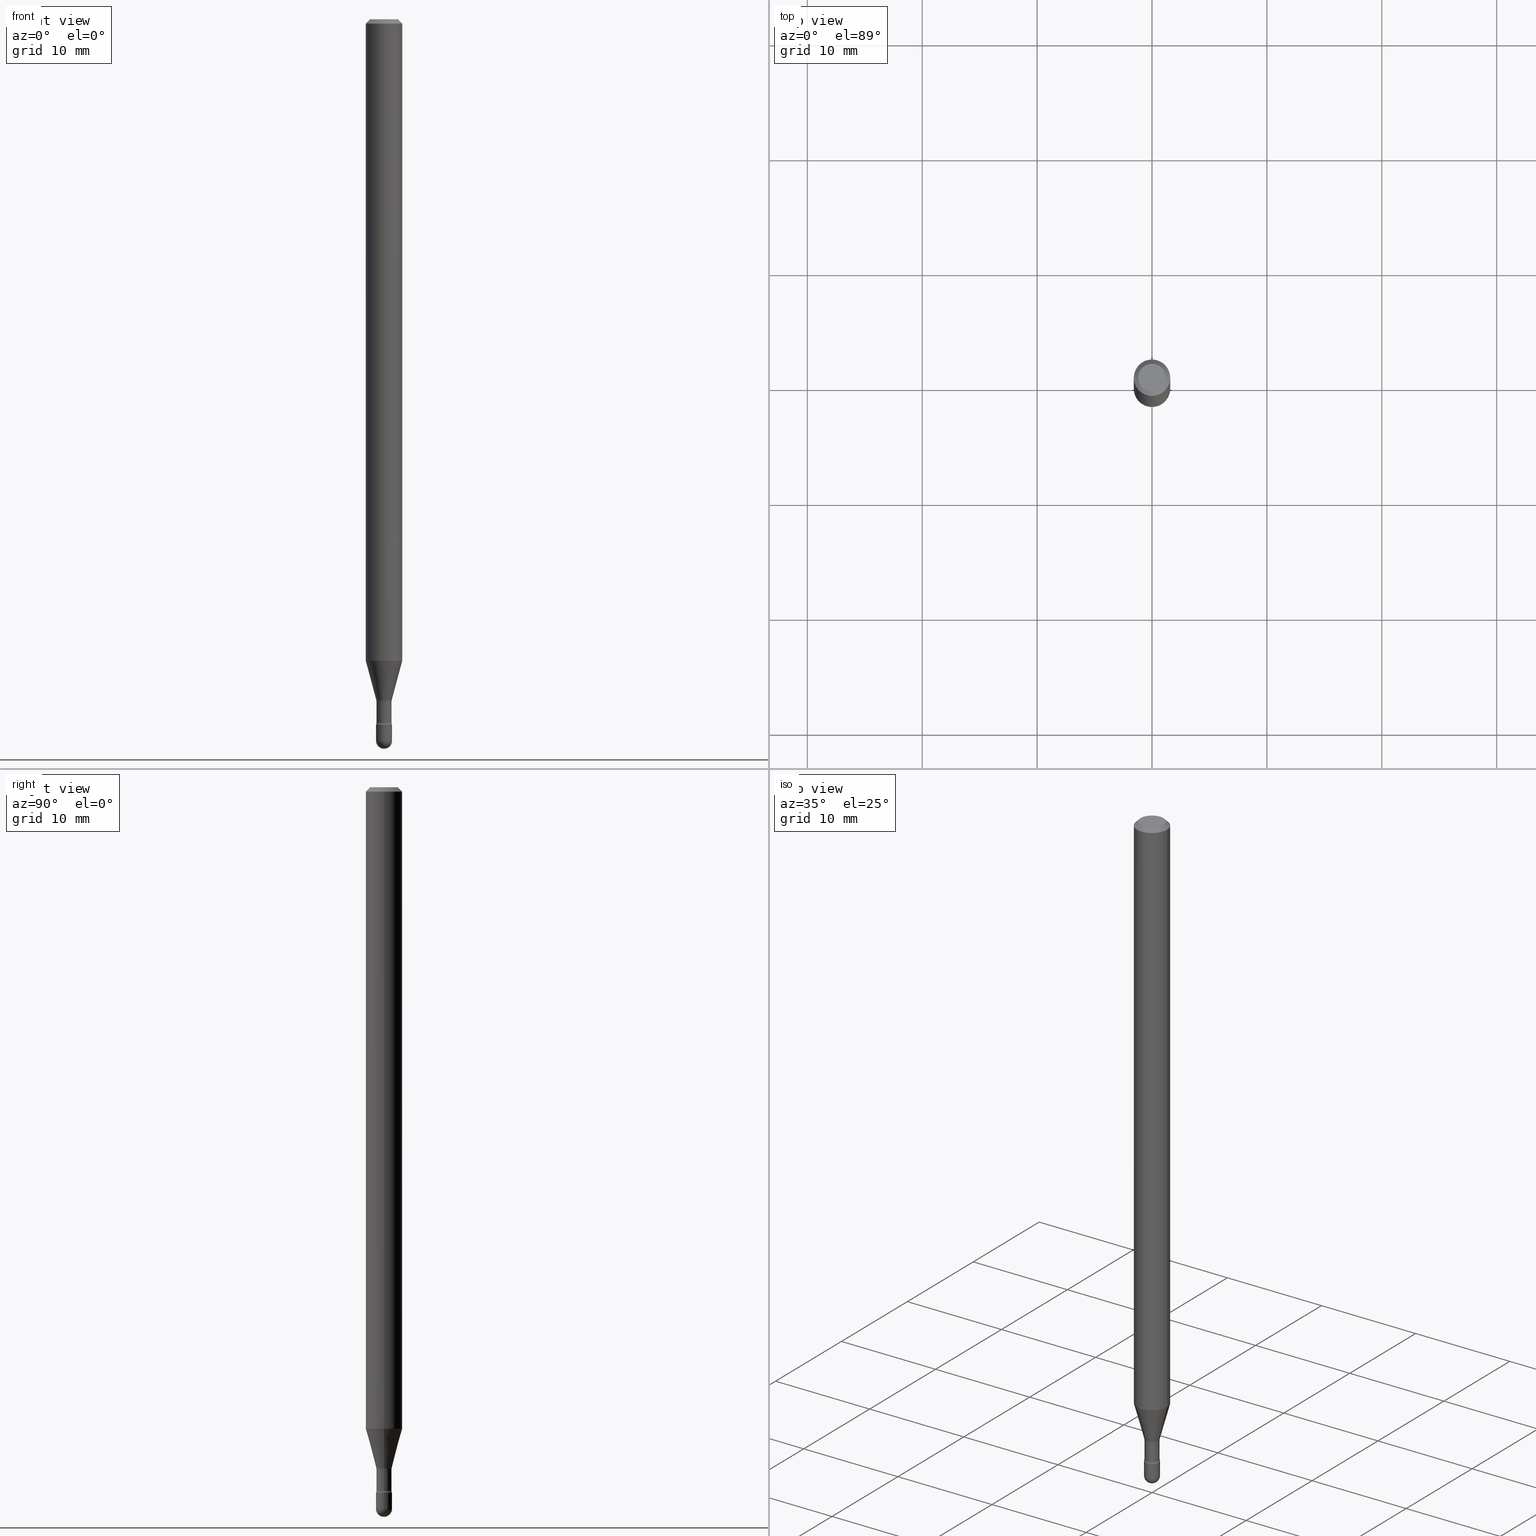
[diagram: canonical four-view strip — front | top / right | iso, engineering-drawing reading convention]
A machine part, canonical four-view strip (front | top / right | iso — engineering-drawing reading convention). The complete STEP part file that produces these views, byte-faithful:
ISO-10303-21;
HEADER;
FILE_DESCRIPTION (( 'STEP AP203' ),
    '1' );
FILE_NAME ('09487.STEP',
    '2024-04-09T23:45:29',
    ( '' ),
    ( '' ),
    'SwSTEP 2.0',
    'SolidWorks 2023',
    '' );
FILE_SCHEMA (( 'CONFIG_CONTROL_DESIGN' ));
ENDSEC;

DATA;
#1 = AXIS2_PLACEMENT_3D ( 'NONE', #174, #534, #110 ) ;
#2 = AXIS2_PLACEMENT_3D ( 'NONE', #153, #528, #62 ) ;
#3 = ORIENTED_EDGE ( 'NONE', *, *, #305, .F. ) ;
#4 = DIRECTION ( 'NONE',  ( 2.445468806185136597E-29, -3.491481338843145583E-15, -1.000000000000000000 ) ) ;
#5 = ORIENTED_EDGE ( 'NONE', *, *, #194, .T. ) ;
#6 = DIRECTION ( 'NONE',  ( 6.982962677686265922E-15, 1.000000000000000000, 0.000000000000000000 ) ) ;
#7 = CC_DESIGN_PERSON_AND_ORGANIZATION_ASSIGNMENT ( #24, #501, ( #342 ) ) ;
#8 = ORIENTED_EDGE ( 'NONE', *, *, #364, .F. ) ;
#9 = CIRCLE ( 'NONE', #104, 0.01500000000000001853 ) ;
#10 = AXIS2_PLACEMENT_3D ( 'NONE', #27, #288, #164 ) ;
#11 = DIMENSIONAL_EXPONENTS ( 1.000000000000000000, 0.000000000000000000, 0.000000000000000000, 0.000000000000000000, 0.000000000000000000, 0.000000000000000000, 0.000000000000000000 ) ;
#12 = DIRECTION ( 'NONE',  ( 1.000000000000000000, -6.982962677686279332E-15, 0.000000000000000000 ) ) ;
#13 = EDGE_CURVE ( 'NONE', #161, #68, #134, .T. ) ;
#14 = ORIENTED_EDGE ( 'NONE', *, *, #256, .T. ) ;
#15 = PLANE ( 'NONE',  #302 ) ;
#16 = PRODUCT_RELATED_PRODUCT_CATEGORY ( 'detail', '', ( #342 ) ) ;
#17 = CARTESIAN_POINT ( 'NONE',  ( 0.02750000000000000014, -1.920314736363723444E-16, 1.340948613343882413E-30 ) ) ;
#18 = CARTESIAN_POINT ( 'NONE',  ( 6.046421623292749742E-29, -8.632687610289676724E-15, -2.472500000000000142 ) ) ;
#19 = FACE_OUTER_BOUND ( 'NONE', #234, .T. ) ;
#20 = AXIS2_PLACEMENT_3D ( 'NONE', #162, #285, #451 ) ;
#21 = ORIENTED_EDGE ( 'NONE', *, *, #305, .T. ) ;
#22 = CARTESIAN_POINT ( 'NONE',  ( 0.04085000000000000436, -8.700284756423646403E-15, -2.410160592130893953 ) ) ;
#23 = DIRECTION ( 'NONE',  ( -2.445468806185136597E-29, 3.491481338843145583E-15, 1.000000000000000000 ) ) ;
#24 = PERSON_AND_ORGANIZATION ( #92, #266 ) ;
#25 = DIRECTION ( 'NONE',  ( -7.105427357601001070E-15, -1.000000000000000000, 0.000000000000000000 ) ) ;
#26 = ADVANCED_FACE ( 'NONE', ( #472 ), #264, .T. ) ;
#27 = CARTESIAN_POINT ( 'NONE',  ( 0.000000000000000000, 0.000000000000000000, 0.000000000000000000 ) ) ;
#28 = ORIENTED_EDGE ( 'NONE', *, *, #511, .F. ) ;
#29 = AXIS2_PLACEMENT_3D ( 'NONE', #518, #391, #299 ) ;
#30 = AXIS2_PLACEMENT_3D ( 'NONE', #85, #560, #334 ) ;
#31 = PERSON_AND_ORGANIZATION_ROLE ( 'design_supplier' ) ;
#32 = APPROVAL_ROLE ( '' ) ;
#33 = ADVANCED_FACE ( 'NONE', ( #46 ), #513, .T. ) ;
#34 = EDGE_LOOP ( 'NONE', ( #356, #400, #107, #271 ) ) ;
#35 = ORIENTED_EDGE ( 'NONE', *, *, #479, .T. ) ;
#36 = DATE_AND_TIME ( #505, #503 ) ;
#37 = PERSON_AND_ORGANIZATION ( #92, #266 ) ;
#38 = DIRECTION ( 'NONE',  ( 1.000000000000000000, -6.982962677686279332E-15, 0.000000000000000000 ) ) ;
#39 = DIRECTION ( 'NONE',  ( -1.000000000000000000, 7.105427357600982137E-15, 0.000000000000000000 ) ) ;
#40 = CARTESIAN_POINT ( 'NONE',  ( 6.046421623292749742E-29, -8.632687610289676724E-15, -2.472500000000000142 ) ) ;
#41 = AXIS2_PLACEMENT_3D ( 'NONE', #304, #522, #137 ) ;
#42 = DIRECTION ( 'NONE',  ( -2.445468806185136597E-29, 3.491481338843145583E-15, 1.000000000000000000 ) ) ;
#43 = AXIS2_PLACEMENT_3D ( 'NONE', #493, #375, #371 ) ;
#44 = EDGE_CURVE ( 'NONE', #287, #237, #396, .T. ) ;
#45 = CARTESIAN_POINT ( 'NONE',  ( 6.046421623292749742E-29, -8.632687610289676724E-15, -2.472500000000000142 ) ) ;
#46 = FACE_OUTER_BOUND ( 'NONE', #188, .T. ) ;
#47 = FACE_OUTER_BOUND ( 'NONE', #475, .T. ) ;
#48 = VERTEX_POINT ( 'NONE', #509 ) ;
#49 = TOROIDAL_SURFACE ( 'NONE', #354, 0.04085000000000000436, 0.01499999999999994740 ) ;
#50 = DIRECTION ( 'NONE',  ( 1.000000000000000000, -6.982962677686265922E-15, 4.883557194083112340E-29 ) ) ;
#51 = AXIS2_PLACEMENT_3D ( 'NONE', #215, #380, #563 ) ;
#52 =( GEOMETRIC_REPRESENTATION_CONTEXT ( 3 ) GLOBAL_UNCERTAINTY_ASSIGNED_CONTEXT ( ( #482 ) ) GLOBAL_UNIT_ASSIGNED_CONTEXT ( ( #261, #179, #343 ) ) REPRESENTATION_CONTEXT ( 'NONE', 'WORKASPACE' ) );
#53 = EDGE_CURVE ( 'NONE', #237, #287, #231, .T. ) ;
#54 = DIRECTION ( 'NONE',  ( -2.445468806185136597E-29, 3.491481338843145583E-15, 1.000000000000000000 ) ) ;
#55 = PLANE ( 'NONE',  #125 ) ;
#56 = APPROVAL_DATE_TIME ( #99, #358 ) ;
#57 = ORIENTED_EDGE ( 'NONE', *, *, #77, .T. ) ;
#58 = VERTEX_POINT ( 'NONE', #389 ) ;
#59 = CLOSED_SHELL ( 'NONE', ( #286, #443, #176, #267, #229, #33, #553, #71, #115, #526, #274, #387, #26, #160 ) ) ;
#60 = EDGE_CURVE ( 'NONE', #102, #48, #117, .T. ) ;
#61 = AXIS2_PLACEMENT_3D ( 'NONE', #114, #233, #313 ) ;
#62 = DIRECTION ( 'NONE',  ( 1.000000000000000000, -6.982962677686256455E-15, 0.000000000000000000 ) ) ;
#63 = ORIENTED_EDGE ( 'NONE', *, *, #210, .T. ) ;
#64 = DIRECTION ( 'NONE',  ( 0.2588190451025210170, 1.565188264969624531E-15, 0.9659258262890682012 ) ) ;
#65 = CARTESIAN_POINT ( 'NONE',  ( -0.02750000000000000014, 1.953992523340275521E-16, -1.352707149820099181E-30 ) ) ;
#66 = DIRECTION ( 'NONE',  ( 1.000000000000000000, -6.982962677686279332E-15, 0.000000000000000000 ) ) ;
#67 = CARTESIAN_POINT ( 'NONE',  ( 5.714998943583889169E-29, -8.159503859776822823E-15, -2.336974787463811154 ) ) ;
#68 = VERTEX_POINT ( 'NONE', #178 ) ;
#69 = AXIS2_PLACEMENT_3D ( 'NONE', #512, #54, #424 ) ;
#70 = TOROIDAL_SURFACE ( 'NONE', #263, 0.04085000000000000436, 0.01499999999999994740 ) ;
#71 = ADVANCED_FACE ( 'NONE', ( #181 ), #378, .T. ) ;
#72 = ORIENTED_EDGE ( 'NONE', *, *, #379, .F. ) ;
#73 = CARTESIAN_POINT ( 'NONE',  ( 5.714998943583889169E-29, -8.159503859776822823E-15, -2.336974787463811154 ) ) ;
#74 = DATE_AND_TIME ( #450, #547 ) ;
#75 = ORIENTED_EDGE ( 'NONE', *, *, #469, .T. ) ;
#76 = DIRECTION ( 'NONE',  ( 1.000000000000000000, -6.982962677686279332E-15, 0.000000000000000000 ) ) ;
#77 = EDGE_CURVE ( 'NONE', #120, #548, #415, .T. ) ;
#78 = AXIS2_PLACEMENT_3D ( 'NONE', #239, #409, #247 ) ;
#79 = AXIS2_PLACEMENT_3D ( 'NONE', #118, #143, #401 ) ;
#80 = ORIENTED_EDGE ( 'NONE', *, *, #545, .F. ) ;
#81 = COORDINATED_UNIVERSAL_TIME_OFFSET ( 5, 0, .BEHIND. ) ;
#82 = DIRECTION ( 'NONE',  ( -2.445468806185136597E-29, 3.491481338843145583E-15, 1.000000000000000000 ) ) ;
#83 = FACE_OUTER_BOUND ( 'NONE', #465, .T. ) ;
#84 = ORIENTED_EDGE ( 'NONE', *, *, #341, .T. ) ;
#85 = CARTESIAN_POINT ( 'NONE',  ( 0.000000000000000000, 0.000000000000000000, 0.000000000000000000 ) ) ;
#86 = FACE_OUTER_BOUND ( 'NONE', #552, .T. ) ;
#87 = DIRECTION ( 'NONE',  ( 6.982962677686265922E-15, 1.000000000000000000, 0.000000000000000000 ) ) ;
#88 = AXIS2_PLACEMENT_3D ( 'NONE', #566, #382, #221 ) ;
#89 = CIRCLE ( 'NONE', #376, 0.01499999999999994220 ) ;
#90 = ADVANCED_FACE ( 'NONE', ( #47 ), #55, .T. ) ;
#91 = DIRECTION ( 'NONE',  ( -2.438088387897960049E-29, 3.491481338843145188E-15, 1.000000000000000000 ) ) ;
#92 = PERSON ( 'UNSPECIFIED', 'UNSPECIFIED', 'UNSPECIFIED', ('UNSPECIFIED'), ('UNSPECIFIED'), ('UNSPECIFIED') ) ;
#93 = DIRECTION ( 'NONE',  ( 1.000000000000000000, -6.982962677686267499E-15, 4.884662768193073002E-29 ) ) ;
#94 =( LENGTH_UNIT ( ) NAMED_UNIT ( * ) SI_UNIT ( $, .METRE. ) );
#95 = CARTESIAN_POINT ( 'NONE',  ( 1.920314736364314350E-16, 0.02749999999999156244, -2.417000000000000259 ) ) ;
#96 = EDGE_CURVE ( 'NONE', #298, #199, #282, .T. ) ;
#97 = CIRCLE ( 'NONE', #168, 0.01499999999999994220 ) ;
#98 = ORIENTED_EDGE ( 'NONE', *, *, #130, .F. ) ;
#99 = DATE_AND_TIME ( #394, #126 ) ;
#100 = ORIENTED_EDGE ( 'NONE', *, *, #511, .T. ) ;
#101 = FACE_OUTER_BOUND ( 'NONE', #521, .T. ) ;
#102 = VERTEX_POINT ( 'NONE', #470 ) ;
#103 = CARTESIAN_POINT ( 'NONE',  ( 0.02636111260566398329, -8.330027597252768852E-15, -2.333092501787273232 ) ) ;
#104 = AXIS2_PLACEMENT_3D ( 'NONE', #123, #331, #506 ) ;
#105 = CC_DESIGN_APPROVAL ( #369, ( #427 ) ) ;
#106 = DIRECTION ( 'NONE',  ( 2.445468806185136597E-29, -3.491481338843145583E-15, -1.000000000000000000 ) ) ;
#107 = ORIENTED_EDGE ( 'NONE', *, *, #349, .F. ) ;
#108 = CARTESIAN_POINT ( 'NONE',  ( -0.06250000000000000000, 3.840629472727441958E-16, -0.01500000000000008271 ) ) ;
#109 = FACE_OUTER_BOUND ( 'NONE', #481, .T. ) ;
#110 = DIRECTION ( 'NONE',  ( 6.982962677686265922E-15, 1.000000000000000000, 0.000000000000000000 ) ) ;
#111 = VERTEX_POINT ( 'NONE', #303 ) ;
#112 = LINE ( 'NONE', #17, #340 ) ;
#113 = CARTESIAN_POINT ( 'NONE',  ( 0.06250000000000000000, -4.811533449433681963E-16, -0.01500000000000008271 ) ) ;
#114 = CARTESIAN_POINT ( 'NONE',  ( -1.169113584055446105E-44, 1.669184350826100908E-30, 4.780733988912460139E-16 ) ) ;
#115 = ADVANCED_FACE ( 'NONE', ( #222 ), #495, .T. ) ;
#116 = CARTESIAN_POINT ( 'NONE',  ( -0.02585000000000006043, -8.237433288748017420E-15, -2.410160592130894397 ) ) ;
#117 = CIRCLE ( 'NONE', #385, 0.04749999999999999362 ) ;
#118 = CARTESIAN_POINT ( 'NONE',  ( 3.668203209277725232E-31, -5.237222008264747365E-17, -0.01500000000000008271 ) ) ;
#119 = AXIS2_PLACEMENT_3D ( 'NONE', #440, #195, #39 ) ;
#120 = VERTEX_POINT ( 'NONE', #217 ) ;
#121 = EDGE_LOOP ( 'NONE', ( #543, #438, #98, #28, #439 ) ) ;
#122 = ADVANCED_FACE ( 'NONE', ( #429 ), #561, .T. ) ;
#123 = CARTESIAN_POINT ( 'NONE',  ( 0.04084999999999999742, -8.444757885160306761E-15, -2.336974787463811154 ) ) ;
#124 = ORIENTED_EDGE ( 'NONE', *, *, #13, .F. ) ;
#125 = AXIS2_PLACEMENT_3D ( 'NONE', #339, #514, #425 ) ;
#126 = LOCAL_TIME ( 19, 45, 29.00000000000000000, #477 ) ;
#127 = EDGE_LOOP ( 'NONE', ( #250, #383, #557, #328 ) ) ;
#128 = APPROVAL_DATE_TIME ( #36, #240 ) ;
#129 = EDGE_LOOP ( 'NONE', ( #139, #254, #163, #410 ) ) ;
#130 = EDGE_CURVE ( 'NONE', #454, #131, #483, .T. ) ;
#131 = VERTEX_POINT ( 'NONE', #468 ) ;
#132 = DIRECTION ( 'NONE',  ( 1.000000000000000000, -6.982962677686262766E-15, 0.000000000000000000 ) ) ;
#133 = CARTESIAN_POINT ( 'NONE',  ( 0.02584999999999999451, -8.340013444995011814E-15, -2.336974787463811154 ) ) ;
#134 = CIRCLE ( 'NONE', #69, 0.02750000000000000014 ) ;
#135 = AXIS2_PLACEMENT_3D ( 'NONE', #18, #453, #76 ) ;
#136 = DIRECTION ( 'NONE',  ( 1.000000000000000000, -6.982962677686279332E-15, 0.000000000000000000 ) ) ;
#137 = DIRECTION ( 'NONE',  ( 1.000000000000000000, -6.982962677686266711E-15, 0.000000000000000000 ) ) ;
#138 = EDGE_CURVE ( 'NONE', #373, #338, #422, .T. ) ;
#139 = ORIENTED_EDGE ( 'NONE', *, *, #469, .F. ) ;
#140 = CARTESIAN_POINT ( 'NONE',  ( 5.893972545952800351E-29, -8.415030731040162465E-15, -2.410160592130894397 ) ) ;
#141 = APPROVAL_STATUS ( 'not_yet_approved' ) ;
#142 = CIRCLE ( 'NONE', #448, 0.02750000000000000014 ) ;
#143 = DIRECTION ( 'NONE',  ( -2.445468806185136597E-29, 3.491481338843145583E-15, 1.000000000000000000 ) ) ;
#144 = ORIENTED_EDGE ( 'NONE', *, *, #44, .T. ) ;
#145 = PERSON_AND_ORGANIZATION ( #92, #266 ) ;
#146 = CARTESIAN_POINT ( 'NONE',  ( -1.953992523339673522E-16, -0.02750000000000868070, -2.472500000000000142 ) ) ;
#147 = AXIS2_PLACEMENT_3D ( 'NONE', #140, #308, #476 ) ;
#148 = VECTOR ( 'NONE', #275, 39.37007874015748143 ) ;
#149 = APPROVAL_PERSON_ORGANIZATION ( #430, #369, #203 ) ;
#150 = EDGE_LOOP ( 'NONE', ( #8, #402, #455, #14 ) ) ;
#151 = CARTESIAN_POINT ( 'NONE',  ( 0.02585000000000002920, -1.805095852181885227E-16, 4.780733988912472958E-16 ) ) ;
#152 = ADVANCED_FACE ( 'NONE', ( #269 ), #467, .T. ) ;
#153 = CARTESIAN_POINT ( 'NONE',  ( 5.705504935065216427E-29, -8.145948931785133025E-15, -2.333092501787273232 ) ) ;
#154 = CARTESIAN_POINT ( 'NONE',  ( 3.316907271900976096E-16, 0.04749999999999999362, 3.181781981480094004E-17 ) ) ;
#155 = CARTESIAN_POINT ( 'NONE',  ( -0.02585000000000002920, 1.836752971939877819E-16, 4.780733988912448306E-16 ) ) ;
#156 = CARTESIAN_POINT ( 'NONE',  ( -0.06250000000000000000, -3.419619544417463912E-15, -0.01500000000000008271 ) ) ;
#157 = EDGE_LOOP ( 'NONE', ( #72, #144, #5, #230 ) ) ;
#158 = PERSON_AND_ORGANIZATION ( #92, #266 ) ;
#159 = VECTOR ( 'NONE', #348, 39.37007874015748143 ) ;
#160 = ADVANCED_FACE ( 'NONE', ( #392 ), #314, .F. ) ;
#161 = VERTEX_POINT ( 'NONE', #146 ) ;
#162 = CARTESIAN_POINT ( 'NONE',  ( 2.023552857353652888E-45, -2.889097183224559242E-31, -8.274703207154537794E-17 ) ) ;
#163 = ORIENTED_EDGE ( 'NONE', *, *, #96, .T. ) ;
#164 = DIRECTION ( 'NONE',  ( 1.000000000000000000, 0.000000000000000000, 0.000000000000000000 ) ) ;
#165 = VERTEX_POINT ( 'NONE', #542 ) ;
#166 = APPROVAL_STATUS ( 'not_yet_approved' ) ;
#167 = DIRECTION ( 'NONE',  ( -2.445468806185136877E-29, 3.491481338843145188E-15, 1.000000000000000000 ) ) ;
#168 = AXIS2_PLACEMENT_3D ( 'NONE', #190, #372, #490 ) ;
#169 = ORIENTED_EDGE ( 'NONE', *, *, #60, .T. ) ;
#170 = EDGE_CURVE ( 'NONE', #350, #161, #533, .T. ) ;
#171 = CARTESIAN_POINT ( 'NONE',  ( 5.375679265462560583E-29, -7.675045288452405582E-15, -2.198220337902601074 ) ) ;
#172 = CARTESIAN_POINT ( 'NONE',  ( -0.06250000000000000000, -7.230956078602342966E-15, -2.198220337902601074 ) ) ;
#173 = DIRECTION ( 'NONE',  ( -2.445468806185136597E-29, 3.491481338843145583E-15, 1.000000000000000000 ) ) ;
#174 = CARTESIAN_POINT ( 'NONE',  ( 6.046421623292749742E-29, -8.632687610289676724E-15, -2.472500000000000142 ) ) ;
#175 = AXIS2_PLACEMENT_3D ( 'NONE', #45, #184, #87 ) ;
#176 = ADVANCED_FACE ( 'NONE', ( #19 ), #49, .F. ) ;
#177 = CIRCLE ( 'NONE', #79, 0.06250000000000000000 ) ;
#178 = CARTESIAN_POINT ( 'NONE',  ( 0.02750000000000000014, -8.727830476773153796E-15, -2.472500000000000142 ) ) ;
#179 =( NAMED_UNIT ( * ) PLANE_ANGLE_UNIT ( ) SI_UNIT ( $, .RADIAN. ) );
#180 = ORIENTED_EDGE ( 'NONE', *, *, #531, .T. ) ;
#181 = FACE_OUTER_BOUND ( 'NONE', #157, .T. ) ;
#182 = PRODUCT_DEFINITION_SHAPE ( 'NONE', 'NONE',  #461 ) ;
#183 = ORIENTED_EDGE ( 'NONE', *, *, #433, .F. ) ;
#184 = DIRECTION ( 'NONE',  ( -1.000000000000000000, 6.982962677686265922E-15, -4.883557194083112901E-29 ) ) ;
#185 = EDGE_LOOP ( 'NONE', ( #325, #57, #183, #124 ) ) ;
#186 = AXIS2_PLACEMENT_3D ( 'NONE', #463, #4, #214 ) ;
#187 = AXIS2_PLACEMENT_3D ( 'NONE', #67, #321, #447 ) ;
#188 = EDGE_LOOP ( 'NONE', ( #63, #245, #365, #201 ) ) ;
#189 = DIRECTION ( 'NONE',  ( 1.000000000000000000, -6.982962677686269077E-15, 4.883557194083113462E-29 ) ) ;
#190 = CARTESIAN_POINT ( 'NONE',  ( -0.04085000000000000436, -8.124774023482161163E-15, -2.410160592130893953 ) ) ;
#191 = ORIENTED_EDGE ( 'NONE', *, *, #53, .T. ) ;
#192 = DIRECTION ( 'NONE',  ( -2.445468806185136877E-29, 3.491481338843145188E-15, 1.000000000000000000 ) ) ;
#193 = CARTESIAN_POINT ( 'NONE',  ( 5.910698104549476805E-29, -8.438910395983884306E-15, -2.417000000000000259 ) ) ;
#194 = EDGE_CURVE ( 'NONE', #237, #298, #236, .T. ) ;
#195 = DIRECTION ( 'NONE',  ( 7.105427357601001859E-15, 1.000000000000000000, -3.491481338843145583E-15 ) ) ;
#196 = LINE ( 'NONE', #65, #437 ) ;
#197 = CIRCLE ( 'NONE', #485, 0.02585000000000006043 ) ;
#198 = CYLINDRICAL_SURFACE ( 'NONE', #61, 0.06250000000000000000 ) ;
#199 = VERTEX_POINT ( 'NONE', #156 ) ;
#200 = DIRECTION ( 'NONE',  ( -6.982962677686266711E-15, -1.000000000000000000, 3.491481338843145583E-15 ) ) ;
#201 = ORIENTED_EDGE ( 'NONE', *, *, #300, .F. ) ;
#202 = DIRECTION ( 'NONE',  ( -2.445468806185136877E-29, 3.491481338843145188E-15, 1.000000000000000000 ) ) ;
#203 = APPROVAL_ROLE ( '' ) ;
#204 = EDGE_CURVE ( 'NONE', #338, #373, #197, .T. ) ;
#205 = EDGE_LOOP ( 'NONE', ( #80, #180, #206, #489 ) ) ;
#206 = ORIENTED_EDGE ( 'NONE', *, *, #218, .T. ) ;
#207 = CYLINDRICAL_SURFACE ( 'NONE', #43, 0.02585000000000002920 ) ;
#208 = CARTESIAN_POINT ( 'NONE',  ( 5.705504935065216427E-29, -8.145948931785133025E-15, -2.333092501787273232 ) ) ;
#209 = EDGE_LOOP ( 'NONE', ( #191, #268, #540, #248 ) ) ;
#210 = EDGE_CURVE ( 'NONE', #165, #549, #212, .T. ) ;
#211 = AXIS2_PLACEMENT_3D ( 'NONE', #388, #42, #213 ) ;
#212 = CIRCLE ( 'NONE', #2, 0.02636111260566398329 ) ;
#213 = DIRECTION ( 'NONE',  ( 1.000000000000000000, -6.982962677686262766E-15, 0.000000000000000000 ) ) ;
#214 = DIRECTION ( 'NONE',  ( -1.000000000000000000, 6.982962677686266711E-15, 0.000000000000000000 ) ) ;
#215 = CARTESIAN_POINT ( 'NONE',  ( 5.714998943583889169E-29, -8.159503859776822823E-15, -2.336974787463811154 ) ) ;
#216 = CARTESIAN_POINT ( 'NONE',  ( -1.169113584055446105E-44, 1.669184350826100908E-30, 4.780733988912460139E-16 ) ) ;
#217 = CARTESIAN_POINT ( 'NONE',  ( 6.114847869110463221E-29, -8.727019457759036735E-15, -2.500000000000000000 ) ) ;
#218 = EDGE_CURVE ( 'NONE', #227, #290, #456, .T. ) ;
#219 = AXIS2_PLACEMENT_3D ( 'NONE', #171, #384, #132 ) ;
#220 = VECTOR ( 'NONE', #167, 39.37007874015748143 ) ;
#221 = DIRECTION ( 'NONE',  ( 1.000000000000000000, -6.982962677686256455E-15, 0.000000000000000000 ) ) ;
#222 = FACE_OUTER_BOUND ( 'NONE', #150, .T. ) ;
#223 = DIRECTION ( 'NONE',  ( 1.000000000000000000, -6.982962677686266711E-15, 4.927827573631265842E-29 ) ) ;
#224 = CARTESIAN_POINT ( 'NONE',  ( 5.910698104549476805E-29, -8.438910395983884306E-15, -2.417000000000000259 ) ) ;
#225 = CALENDAR_DATE ( 2024, 9, 4 ) ;
#226 = DIRECTION ( 'NONE',  ( 1.000000000000000000, -6.982962677686266711E-15, 4.876176775795935793E-29 ) ) ;
#227 = VERTEX_POINT ( 'NONE', #494 ) ;
#228 = COORDINATED_UNIVERSAL_TIME_OFFSET ( 5, 0, .BEHIND. ) ;
#229 = ADVANCED_FACE ( 'NONE', ( #351 ), #198, .T. ) ;
#230 = ORIENTED_EDGE ( 'NONE', *, *, #256, .F. ) ;
#231 = CIRCLE ( 'NONE', #219, 0.06250000000000000000 ) ;
#232 = AXIS2_PLACEMENT_3D ( 'NONE', #316, #471, #381 ) ;
#233 = DIRECTION ( 'NONE',  ( -2.445468806185136597E-29, 3.491481338843145583E-15, 1.000000000000000000 ) ) ;
#234 = EDGE_LOOP ( 'NONE', ( #318, #359, #21, #353 ) ) ;
#235 = CARTESIAN_POINT ( 'NONE',  ( 5.910698104549476805E-29, -8.438910395983884306E-15, -2.417000000000000259 ) ) ;
#236 = LINE ( 'NONE', #488, #159 ) ;
#237 = VERTEX_POINT ( 'NONE', #484 ) ;
#238 = DIRECTION ( 'NONE',  ( -2.445468806185136877E-29, 3.491481338843145188E-15, 1.000000000000000000 ) ) ;
#239 = CARTESIAN_POINT ( 'NONE',  ( 5.714998943583889169E-29, -8.159503859776822823E-15, -2.336974787463811154 ) ) ;
#240 = APPROVAL ( #166, 'UNSPECIFIED' ) ;
#241 = ORIENTED_EDGE ( 'NONE', *, *, #130, .T. ) ;
#242 = CARTESIAN_POINT ( 'NONE',  ( 0.02585000000000006043, -8.595540316258353034E-15, -2.410160592130894397 ) ) ;
#243 = CIRCLE ( 'NONE', #119, 0.01500000000000001853 ) ;
#244 = CARTESIAN_POINT ( 'NONE',  ( 6.046421623292749742E-29, -8.632687610289676724E-15, -2.472500000000000142 ) ) ;
#245 = ORIENTED_EDGE ( 'NONE', *, *, #496, .T. ) ;
#246 = DIRECTION ( 'NONE',  ( -2.445468806185136597E-29, 3.491481338843145583E-15, 1.000000000000000000 ) ) ;
#247 = DIRECTION ( 'NONE',  ( 1.000000000000000000, -6.982962677686260400E-15, 4.883557194083110659E-29 ) ) ;
#248 = ORIENTED_EDGE ( 'NONE', *, *, #194, .F. ) ;
#249 = CARTESIAN_POINT ( 'NONE',  ( 0.02750000000000000014, -8.630941869620257587E-15, -2.417000000000000259 ) ) ;
#250 = ORIENTED_EDGE ( 'NONE', *, *, #452, .F. ) ;
#251 = AXIS2_PLACEMENT_3D ( 'NONE', #224, #564, #136 ) ;
#252 = TOROIDAL_SURFACE ( 'NONE', #51, 0.04084999999999999742, 0.01500000000000002373 ) ;
#253 = APPLICATION_PROTOCOL_DEFINITION ( 'international standard', 'config_control_design', 1994, #558 ) ;
#254 = ORIENTED_EDGE ( 'NONE', *, *, #364, .T. ) ;
#255 = MANIFOLD_SOLID_BREP ( 'Body-Move/Copy2[1]', #546 ) ;
#256 = EDGE_CURVE ( 'NONE', #199, #298, #177, .T. ) ;
#257 = ORIENTED_EDGE ( 'NONE', *, *, #349, .T. ) ;
#258 = AXIS2_PLACEMENT_3D ( 'NONE', #208, #556, #333 ) ;
#259 = CARTESIAN_POINT ( 'NONE',  ( 6.046421623292749742E-29, -8.632687610289676724E-15, -2.472500000000000142 ) ) ;
#260 = ORIENTED_EDGE ( 'NONE', *, *, #421, .F. ) ;
#261 =( CONVERSION_BASED_UNIT ( 'INCH', #516 ) LENGTH_UNIT ( ) NAMED_UNIT ( #11 ) );
#262 = CC_DESIGN_DATE_AND_TIME_ASSIGNMENT ( #418, #293, ( #417 ) ) ;
#263 = AXIS2_PLACEMENT_3D ( 'NONE', #486, #408, #322 ) ;
#264 = CYLINDRICAL_SURFACE ( 'NONE', #374, 0.02585000000000002920 ) ;
#265 = MANIFOLD_SOLID_BREP ( 'Body-Move/Copy2[2]', #59 ) ;
#266 = ORGANIZATION ( 'UNSPECIFIED', 'UNSPECIFIED', '' ) ;
#267 = ADVANCED_FACE ( 'NONE', ( #310 ), #315, .T. ) ;
#268 = ORIENTED_EDGE ( 'NONE', *, *, #379, .T. ) ;
#269 = FACE_OUTER_BOUND ( 'NONE', #185, .T. ) ;
#270 = PERSON_AND_ORGANIZATION ( #92, #266 ) ;
#271 = ORIENTED_EDGE ( 'NONE', *, *, #312, .F. ) ;
#272 = ORIENTED_EDGE ( 'NONE', *, *, #77, .F. ) ;
#273 = VECTOR ( 'NONE', #403, 39.37007874015748143 ) ;
#274 = ADVANCED_FACE ( 'NONE', ( #101 ), #15, .F. ) ;
#275 = DIRECTION ( 'NONE',  ( -0.7071067811865475727, 2.468850131082257455E-15, -0.7071067811865474617 ) ) ;
#276 = CYLINDRICAL_SURFACE ( 'NONE', #363, 0.02750000000000000014 ) ;
#277 = DIRECTION ( 'NONE',  ( -2.445468806185136597E-29, 3.491481338843145583E-15, 1.000000000000000000 ) ) ;
#278 = CARTESIAN_POINT ( 'NONE',  ( -0.02636111260566398329, -7.958641961100047528E-15, -2.333092501787273232 ) ) ;
#279 = ORIENTED_EDGE ( 'NONE', *, *, #170, .F. ) ;
#280 = DIRECTION ( 'NONE',  ( 0.7071067811865475727, -7.319954787623256045E-15, -0.7071067811865474617 ) ) ;
#281 = DIRECTION ( 'NONE',  ( 1.000000000000000000, -6.982962677686277755E-15, 0.000000000000000000 ) ) ;
#282 = CIRCLE ( 'NONE', #41, 0.06250000000000000000 ) ;
#283 = LINE ( 'NONE', #151, #273 ) ;
#284 = COORDINATED_UNIVERSAL_TIME_OFFSET ( 5, 0, .BEHIND. ) ;
#285 = DIRECTION ( 'NONE',  ( -2.445468806185136597E-29, 3.491481338843145583E-15, 1.000000000000000000 ) ) ;
#286 = ADVANCED_FACE ( 'NONE', ( #320 ), #252, .F. ) ;
#287 = VERTEX_POINT ( 'NONE', #172 ) ;
#288 = DIRECTION ( 'NONE',  ( 0.000000000000000000, 0.000000000000000000, 1.000000000000000000 ) ) ;
#289 = APPLICATION_CONTEXT ( 'configuration controlled 3d designs of mechanical parts and assemblies' ) ;
#290 = VERTEX_POINT ( 'NONE', #133 ) ;
#291 = AXIS2_PLACEMENT_3D ( 'NONE', #244, #277, #12 ) ;
#292 = EDGE_CURVE ( 'NONE', #131, #454, #535, .T. ) ;
#293 = DATE_TIME_ROLE ( 'classification_date' ) ;
#294 = CIRCLE ( 'NONE', #135, 0.02750000000000000014 ) ;
#295 = APPROVAL_PERSON_ORGANIZATION ( #37, #240, #32 ) ;
#296 = ORIENTED_EDGE ( 'NONE', *, *, #531, .F. ) ;
#297 = FACE_OUTER_BOUND ( 'NONE', #121, .T. ) ;
#298 = VERTEX_POINT ( 'NONE', #527 ) ;
#299 = DIRECTION ( 'NONE',  ( 1.000000000000000000, -6.982962677686266711E-15, 4.852736867747366207E-29 ) ) ;
#300 = EDGE_CURVE ( 'NONE', #165, #237, #399, .T. ) ;
#301 = ORIENTED_EDGE ( 'NONE', *, *, #545, .T. ) ;
#302 = AXIS2_PLACEMENT_3D ( 'NONE', #95, #91, #434 ) ;
#303 = CARTESIAN_POINT ( 'NONE',  ( 0.02749999999999997238, -8.630941869620257587E-15, -2.417000000000000259 ) ) ;
#304 = CARTESIAN_POINT ( 'NONE',  ( 3.668203209277725232E-31, -5.237222008264747365E-17, -0.01500000000000008271 ) ) ;
#305 = EDGE_CURVE ( 'NONE', #58, #111, #306, .T. ) ;
#306 = CIRCLE ( 'NONE', #397, 0.02750000000000000014 ) ;
#307 = ORIENTED_EDGE ( 'NONE', *, *, #300, .T. ) ;
#308 = DIRECTION ( 'NONE',  ( -2.445468806185136597E-29, 3.491481338843145583E-15, 1.000000000000000000 ) ) ;
#309 = APPROVAL_ROLE ( '' ) ;
#310 = FACE_OUTER_BOUND ( 'NONE', #129, .T. ) ;
#311 = EDGE_LOOP ( 'NONE', ( #345, #368, #539, #530 ) ) ;
#312 = EDGE_CURVE ( 'NONE', #373, #290, #283, .T. ) ;
#313 = DIRECTION ( 'NONE',  ( 1.000000000000000000, -6.982962677686266711E-15, 4.852736867747366207E-29 ) ) ;
#314 = TOROIDAL_SURFACE ( 'NONE', #78, 0.04084999999999999742, 0.01500000000000002373 ) ;
#315 = CONICAL_SURFACE ( 'NONE', #502, 0.06250000000000000000, 0.7853981633974483900 ) ;
#316 = CARTESIAN_POINT ( 'NONE',  ( 5.705504935065216427E-29, -8.145948931785133025E-15, -2.333092501787273232 ) ) ;
#317 = DIRECTION ( 'NONE',  ( 1.000000000000000000, -6.982962677686295110E-15, 0.000000000000000000 ) ) ;
#318 = ORIENTED_EDGE ( 'NONE', *, *, #204, .F. ) ;
#319 = CARTESIAN_POINT ( 'NONE',  ( -0.06250000000000000000, 4.440892098500642925E-16, 4.780733988912429571E-16 ) ) ;
#320 = FACE_OUTER_BOUND ( 'NONE', #205, .T. ) ;
#321 = DIRECTION ( 'NONE',  ( -2.445468806185136597E-29, 3.491481338843145583E-15, 1.000000000000000000 ) ) ;
#322 = DIRECTION ( 'NONE',  ( 1.000000000000000000, -6.982962677686269077E-15, 4.883557194083113462E-29 ) ) ;
#323 = CARTESIAN_POINT ( 'NONE',  ( 3.668203209277725232E-31, -5.237222008264747365E-17, -0.01500000000000008271 ) ) ;
#324 = EDGE_CURVE ( 'NONE', #111, #58, #423, .T. ) ;
#325 = ORIENTED_EDGE ( 'NONE', *, *, #341, .F. ) ;
#326 = CONICAL_SURFACE ( 'NONE', #232, 0.02636111260566398329, 0.2617993877991496854 ) ;
#327 = APPROVAL_DATE_TIME ( #74, #369 ) ;
#328 = ORIENTED_EDGE ( 'NONE', *, *, #218, .F. ) ;
#329 = EDGE_LOOP ( 'NONE', ( #272, #84, #279, #260 ) ) ;
#330 = ORIENTED_EDGE ( 'NONE', *, *, #292, .F. ) ;
#331 = DIRECTION ( 'NONE',  ( -6.982962677686266711E-15, -1.000000000000000000, 3.491481338843145583E-15 ) ) ;
#332 = VECTOR ( 'NONE', #478, 39.37007874015748143 ) ;
#333 = DIRECTION ( 'NONE',  ( 1.000000000000000000, -6.982962677686256455E-15, 0.000000000000000000 ) ) ;
#334 = DIRECTION ( 'NONE',  ( 1.000000000000000000, -6.982962677686266711E-15, 4.876176775795935793E-29 ) ) ;
#335 = DESIGN_CONTEXT ( 'detailed design', #289, 'design' ) ;
#336 = CARTESIAN_POINT ( 'NONE',  ( 2.023552857353652888E-45, -2.889097183224559242E-31, -8.274703207154537794E-17 ) ) ;
#337 = CARTESIAN_POINT ( 'NONE',  ( 5.910698104549476805E-29, -8.438910395983884306E-15, -2.417000000000000259 ) ) ;
#338 = VERTEX_POINT ( 'NONE', #116 ) ;
#339 = CARTESIAN_POINT ( 'NONE',  ( 5.910698104549476805E-29, -8.438910395983884306E-15, -2.417000000000000259 ) ) ;
#340 = VECTOR ( 'NONE', #192, 39.37007874015748143 ) ;
#341 = EDGE_CURVE ( 'NONE', #120, #161, #559, .T. ) ;
#342 = PRODUCT ( '09487', '09487', '', ( #367 ) ) ;
#343 =( NAMED_UNIT ( * ) SI_UNIT ( $, .STERADIAN. ) SOLID_ANGLE_UNIT ( ) );
#344 = VECTOR ( 'NONE', #64, 39.37007874015748143 ) ;
#345 = ORIENTED_EDGE ( 'NONE', *, *, #504, .F. ) ;
#346 = CC_DESIGN_APPROVAL ( #240, ( #417 ) ) ;
#347 = APPLICATION_PROTOCOL_DEFINITION ( 'international standard', 'config_control_design', 1994, #289 ) ;
#348 = DIRECTION ( 'NONE',  ( -2.445468806185136877E-29, 3.491481338843145188E-15, 1.000000000000000000 ) ) ;
#349 = EDGE_CURVE ( 'NONE', #290, #227, #426, .T. ) ;
#350 = VERTEX_POINT ( 'NONE', #352 ) ;
#351 = FACE_OUTER_BOUND ( 'NONE', #209, .T. ) ;
#352 = CARTESIAN_POINT ( 'NONE',  ( -0.02750000000000000014, -8.340399750802752396E-15, -2.472500000000000142 ) ) ;
#353 = ORIENTED_EDGE ( 'NONE', *, *, #395, .F. ) ;
#354 = AXIS2_PLACEMENT_3D ( 'NONE', #538, #23, #189 ) ;
#355 = AXIS2_PLACEMENT_3D ( 'NONE', #193, #449, #491 ) ;
#356 = ORIENTED_EDGE ( 'NONE', *, *, #138, .T. ) ;
#357 = LINE ( 'NONE', #319, #515 ) ;
#358 = APPROVAL ( #141, 'UNSPECIFIED' ) ;
#359 = ORIENTED_EDGE ( 'NONE', *, *, #504, .T. ) ;
#360 = CARTESIAN_POINT ( 'NONE',  ( 6.046421623292749742E-29, -8.632687610289676724E-15, -2.472500000000000142 ) ) ;
#361 = PERSON_AND_ORGANIZATION ( #92, #266 ) ;
#362 = AXIS2_PLACEMENT_3D ( 'NONE', #337, #510, #66 ) ;
#363 = AXIS2_PLACEMENT_3D ( 'NONE', #464, #550, #226 ) ;
#364 = EDGE_CURVE ( 'NONE', #48, #298, #532, .T. ) ;
#365 = ORIENTED_EDGE ( 'NONE', *, *, #53, .F. ) ;
#366 = SHAPE_DEFINITION_REPRESENTATION ( #182, #436 ) ;
#367 = MECHANICAL_CONTEXT ( 'NONE', #558, 'mechanical' ) ;
#368 = ORIENTED_EDGE ( 'NONE', *, *, #138, .F. ) ;
#369 = APPROVAL ( #413, 'UNSPECIFIED' ) ;
#370 = PERSON_AND_ORGANIZATION ( #92, #266 ) ;
#371 = DIRECTION ( 'NONE',  ( 1.000000000000000000, -6.982962677686266711E-15, 4.927827573631265842E-29 ) ) ;
#372 = DIRECTION ( 'NONE',  ( 7.105427357601001859E-15, 1.000000000000000000, -3.491481338843145583E-15 ) ) ;
#373 = VERTEX_POINT ( 'NONE', #242 ) ;
#374 = AXIS2_PLACEMENT_3D ( 'NONE', #216, #428, #223 ) ;
#375 = DIRECTION ( 'NONE',  ( -2.445468806185136597E-29, 3.491481338843145583E-15, 1.000000000000000000 ) ) ;
#376 = AXIS2_PLACEMENT_3D ( 'NONE', #22, #200, #317 ) ;
#377 = LOCAL_TIME ( 19, 45, 29.00000000000000000, #81 ) ;
#378 = CYLINDRICAL_SURFACE ( 'NONE', #29, 0.06250000000000000000 ) ;
#379 = EDGE_CURVE ( 'NONE', #287, #199, #357, .T. ) ;
#380 = DIRECTION ( 'NONE',  ( -2.445468806185136597E-29, 3.491481338843145583E-15, 1.000000000000000000 ) ) ;
#381 = DIRECTION ( 'NONE',  ( 1.000000000000000000, -6.982962677686256455E-15, 0.000000000000000000 ) ) ;
#382 = DIRECTION ( 'NONE',  ( -2.445468806185136597E-29, 3.491481338843145583E-15, 1.000000000000000000 ) ) ;
#383 = ORIENTED_EDGE ( 'NONE', *, *, #204, .T. ) ;
#384 = DIRECTION ( 'NONE',  ( -2.445468806185136597E-29, 3.491481338843145583E-15, 1.000000000000000000 ) ) ;
#385 = AXIS2_PLACEMENT_3D ( 'NONE', #336, #173, #93 ) ;
#386 = VECTOR ( 'NONE', #280, 39.37007874015748143 ) ;
#387 = ADVANCED_FACE ( 'NONE', ( #537 ), #70, .F. ) ;
#388 = CARTESIAN_POINT ( 'NONE',  ( 5.375679265462560583E-29, -7.675045288452405582E-15, -2.198220337902601074 ) ) ;
#389 = CARTESIAN_POINT ( 'NONE',  ( -0.02749999999999997238, -8.243511143649856187E-15, -2.417000000000000259 ) ) ;
#390 = CC_DESIGN_PERSON_AND_ORGANIZATION_ASSIGNMENT ( #158, #31, ( #427 ) ) ;
#391 = DIRECTION ( 'NONE',  ( -2.445468806185136597E-29, 3.491481338843145583E-15, 1.000000000000000000 ) ) ;
#392 = FACE_OUTER_BOUND ( 'NONE', #459, .T. ) ;
#393 = ORIENTED_EDGE ( 'NONE', *, *, #324, .F. ) ;
#394 = CALENDAR_DATE ( 2024, 9, 4 ) ;
#395 = EDGE_CURVE ( 'NONE', #373, #111, #89, .T. ) ;
#396 = CIRCLE ( 'NONE', #211, 0.06250000000000000000 ) ;
#397 = AXIS2_PLACEMENT_3D ( 'NONE', #235, #520, #441 ) ;
#398 = ORIENTED_EDGE ( 'NONE', *, *, #496, .F. ) ;
#399 = LINE ( 'NONE', #103, #344 ) ;
#400 = ORIENTED_EDGE ( 'NONE', *, *, #452, .T. ) ;
#401 = DIRECTION ( 'NONE',  ( 1.000000000000000000, -6.982962677686266711E-15, 0.000000000000000000 ) ) ;
#402 = ORIENTED_EDGE ( 'NONE', *, *, #60, .F. ) ;
#403 = DIRECTION ( 'NONE',  ( -2.445468806185136877E-29, 3.491481338843145188E-15, 1.000000000000000000 ) ) ;
#404 = ORIENTED_EDGE ( 'NONE', *, *, #44, .F. ) ;
#405 = EDGE_CURVE ( 'NONE', #102, #199, #541, .T. ) ;
#406 = AXIS2_PLACEMENT_3D ( 'NONE', #360, #446, #25 ) ;
#407 = APPROVAL_PERSON_ORGANIZATION ( #145, #358, #309 ) ;
#408 = DIRECTION ( 'NONE',  ( -2.445468806185136597E-29, 3.491481338843145583E-15, 1.000000000000000000 ) ) ;
#409 = DIRECTION ( 'NONE',  ( -2.445468806185136597E-29, 3.491481338843145583E-15, 1.000000000000000000 ) ) ;
#410 = ORIENTED_EDGE ( 'NONE', *, *, #405, .F. ) ;
#411 = DIRECTION ( 'NONE',  ( 2.438088387897960049E-29, -3.491481338843145188E-15, -1.000000000000000000 ) ) ;
#412 = DIRECTION ( 'NONE',  ( 1.000000000000000000, -6.982962677686257244E-15, 0.000000000000000000 ) ) ;
#413 = APPROVAL_STATUS ( 'not_yet_approved' ) ;
#414 = EDGE_CURVE ( 'NONE', #350, #131, #196, .T. ) ;
#415 = CIRCLE ( 'NONE', #525, 0.02750000000000009034 ) ;
#416 = AXIS2_PLACEMENT_3D ( 'NONE', #73, #246, #412 ) ;
#417 = SECURITY_CLASSIFICATION ( '', '', #500 ) ;
#418 = DATE_AND_TIME ( #554, #377 ) ;
#419 = DIRECTION ( 'NONE',  ( -1.000000000000000000, 6.982962677686265922E-15, -4.876176775795935793E-29 ) ) ;
#420 = ORIENTED_EDGE ( 'NONE', *, *, #13, .T. ) ;
#421 = EDGE_CURVE ( 'NONE', #548, #350, #294, .T. ) ;
#422 = CIRCLE ( 'NONE', #147, 0.02585000000000006043 ) ;
#423 = CIRCLE ( 'NONE', #355, 0.02750000000000000014 ) ;
#424 = DIRECTION ( 'NONE',  ( 1.000000000000000000, -6.982962677686279332E-15, 0.000000000000000000 ) ) ;
#425 = DIRECTION ( 'NONE',  ( 1.000000000000000000, -6.982962677686265922E-15, 4.876176775795935793E-29 ) ) ;
#426 = CIRCLE ( 'NONE', #416, 0.02584999999999999451 ) ;
#427 = PRODUCT_DEFINITION_FORMATION_WITH_SPECIFIED_SOURCE ( 'ANY', '', #342, .NOT_KNOWN. ) ;
#428 = DIRECTION ( 'NONE',  ( -2.445468806185136597E-29, 3.491481338843145583E-15, 1.000000000000000000 ) ) ;
#429 = FACE_OUTER_BOUND ( 'NONE', #329, .T. ) ;
#430 = PERSON_AND_ORGANIZATION ( #92, #266 ) ;
#431 = PERSON_AND_ORGANIZATION_ROLE ( 'creator' ) ;
#432 = ORIENTED_EDGE ( 'NONE', *, *, #292, .T. ) ;
#433 = EDGE_CURVE ( 'NONE', #68, #548, #142, .T. ) ;
#434 = DIRECTION ( 'NONE',  ( 1.000000000000000000, -6.982962677686265922E-15, 4.876176775795935793E-29 ) ) ;
#435 = CARTESIAN_POINT ( 'NONE',  ( 5.893972545952800351E-29, -8.415030731040162465E-15, -2.410160592130894397 ) ) ;
#436 = ADVANCED_BREP_SHAPE_REPRESENTATION ( '09487', ( #255, #265, #10 ), #52 ) ;
#437 = VECTOR ( 'NONE', #238, 39.37007874015748143 ) ;
#438 = ORIENTED_EDGE ( 'NONE', *, *, #414, .T. ) ;
#439 = ORIENTED_EDGE ( 'NONE', *, *, #433, .T. ) ;
#440 = CARTESIAN_POINT ( 'NONE',  ( -0.04084999999999999742, -7.869247152218821521E-15, -2.336974787463811154 ) ) ;
#441 = DIRECTION ( 'NONE',  ( 1.000000000000000000, -6.982962677686279332E-15, 0.000000000000000000 ) ) ;
#442 = DIRECTION ( 'NONE',  ( -2.445468806185136597E-29, 3.491481338843145583E-15, 1.000000000000000000 ) ) ;
#443 = ADVANCED_FACE ( 'NONE', ( #499 ), #207, .T. ) ;
#444 = ORIENTED_EDGE ( 'NONE', *, *, #414, .F. ) ;
#445 = PLANE ( 'NONE',  #474 ) ;
#446 = DIRECTION ( 'NONE',  ( -1.000000000000000000, 7.105427357601001070E-15, -4.926315508542082329E-29 ) ) ;
#447 = DIRECTION ( 'NONE',  ( 1.000000000000000000, -6.982962677686257244E-15, 0.000000000000000000 ) ) ;
#448 = AXIS2_PLACEMENT_3D ( 'NONE', #40, #82, #38 ) ;
#449 = DIRECTION ( 'NONE',  ( -2.445468806185136597E-29, 3.491481338843145583E-15, 1.000000000000000000 ) ) ;
#450 = CALENDAR_DATE ( 2024, 9, 4 ) ;
#451 = DIRECTION ( 'NONE',  ( 1.000000000000000000, -6.982962677686267499E-15, 4.884662768193073002E-29 ) ) ;
#452 = EDGE_CURVE ( 'NONE', #338, #227, #555, .T. ) ;
#453 = DIRECTION ( 'NONE',  ( -2.445468806185136597E-29, 3.491481338843145583E-15, 1.000000000000000000 ) ) ;
#454 = VERTEX_POINT ( 'NONE', #249 ) ;
#455 = ORIENTED_EDGE ( 'NONE', *, *, #405, .T. ) ;
#456 = CIRCLE ( 'NONE', #187, 0.02584999999999999451 ) ;
#457 = PERSON_AND_ORGANIZATION_ROLE ( 'classification_officer' ) ;
#458 = CC_DESIGN_APPROVAL ( #358, ( #461 ) ) ;
#459 = EDGE_LOOP ( 'NONE', ( #296, #524, #35, #257 ) ) ;
#460 = CYLINDRICAL_SURFACE ( 'NONE', #30, 0.02750000000000000014 ) ;
#461 = PRODUCT_DEFINITION ( 'UNKNOWN', '', #427, #335 ) ;
#462 = CARTESIAN_POINT ( 'NONE',  ( -0.02636111260566398329, -7.594799019851195247E-15, -2.333092501787273232 ) ) ;
#463 = CARTESIAN_POINT ( 'NONE',  ( 3.668203209277725232E-31, -5.237222008264747365E-17, -0.01500000000000008271 ) ) ;
#464 = CARTESIAN_POINT ( 'NONE',  ( 0.000000000000000000, 0.000000000000000000, 0.000000000000000000 ) ) ;
#465 = EDGE_LOOP ( 'NONE', ( #169, #75 ) ) ;
#466 = CIRCLE ( 'NONE', #20, 0.04749999999999999362 ) ;
#467 = SPHERICAL_SURFACE ( 'NONE', #1, 0.02750000000000009034 ) ;
#468 = CARTESIAN_POINT ( 'NONE',  ( -0.02750000000000000014, -8.340399750802752396E-15, -2.417000000000000259 ) ) ;
#469 = EDGE_CURVE ( 'NONE', #48, #102, #466, .T. ) ;
#470 = CARTESIAN_POINT ( 'NONE',  ( -0.04749999999999999362, 3.578768372314208041E-16, -8.274703207154778150E-17 ) ) ;
#471 = DIRECTION ( 'NONE',  ( -2.445468806185136597E-29, 3.491481338843145583E-15, 1.000000000000000000 ) ) ;
#472 = FACE_OUTER_BOUND ( 'NONE', #127, .T. ) ;
#473 = DATE_TIME_ROLE ( 'creation_date' ) ;
#474 = AXIS2_PLACEMENT_3D ( 'NONE', #154, #411, #419 ) ;
#475 = EDGE_LOOP ( 'NONE', ( #241, #432 ) ) ;
#476 = DIRECTION ( 'NONE',  ( 1.000000000000000000, -6.982962677686277755E-15, 0.000000000000000000 ) ) ;
#477 = COORDINATED_UNIVERSAL_TIME_OFFSET ( 5, 0, .BEHIND. ) ;
#478 = DIRECTION ( 'NONE',  ( -0.2588190451025210170, 5.211531920934547886E-15, 0.9659258262890682012 ) ) ;
#479 = EDGE_CURVE ( 'NONE', #165, #290, #9, .T. ) ;
#480 = DIRECTION ( 'NONE',  ( -1.000000000000000000, 6.982962677686266711E-15, 0.000000000000000000 ) ) ;
#481 = EDGE_LOOP ( 'NONE', ( #444, #529, #420, #100, #330 ) ) ;
#482 = UNCERTAINTY_MEASURE_WITH_UNIT (LENGTH_MEASURE( 1.000000000000000082E-05 ), #261, 'distance_accuracy_value', 'NONE');
#483 = CIRCLE ( 'NONE', #251, 0.02750000000000000014 ) ;
#484 = CARTESIAN_POINT ( 'NONE',  ( 0.06250000000000000000, -8.111480455807797251E-15, -2.198220337902601074 ) ) ;
#485 = AXIS2_PLACEMENT_3D ( 'NONE', #435, #442, #281 ) ;
#486 = CARTESIAN_POINT ( 'NONE',  ( 5.893972545952799230E-29, -8.415030731040162465E-15, -2.410160592130893953 ) ) ;
#487 = ADVANCED_FACE ( 'NONE', ( #297 ), #460, .T. ) ;
#488 = CARTESIAN_POINT ( 'NONE',  ( 0.06250000000000000000, -4.364351673553899931E-16, 4.780733988912490708E-16 ) ) ;
#489 = ORIENTED_EDGE ( 'NONE', *, *, #479, .F. ) ;
#490 = DIRECTION ( 'NONE',  ( -1.000000000000000000, 7.105427357601017636E-15, 0.000000000000000000 ) ) ;
#491 = DIRECTION ( 'NONE',  ( 1.000000000000000000, -6.982962677686279332E-15, 0.000000000000000000 ) ) ;
#492 = CC_DESIGN_PERSON_AND_ORGANIZATION_ASSIGNMENT ( #361, #544, ( #427 ) ) ;
#493 = CARTESIAN_POINT ( 'NONE',  ( -1.169113584055446105E-44, 1.669184350826100908E-30, 4.780733988912460139E-16 ) ) ;
#494 = CARTESIAN_POINT ( 'NONE',  ( -0.02584999999999999451, -8.103591998214506464E-15, -2.336974787463811154 ) ) ;
#495 = CONICAL_SURFACE ( 'NONE', #186, 0.06250000000000000000, 0.7853981633974483900 ) ;
#496 = EDGE_CURVE ( 'NONE', #549, #287, #508, .T. ) ;
#497 = CIRCLE ( 'NONE', #258, 0.02636111260566398329 ) ;
#498 = CC_DESIGN_SECURITY_CLASSIFICATION ( #417, ( #427 ) ) ;
#499 = FACE_OUTER_BOUND ( 'NONE', #34, .T. ) ;
#500 = SECURITY_CLASSIFICATION_LEVEL ( 'unclassified' ) ;
#501 = PERSON_AND_ORGANIZATION_ROLE ( 'design_owner' ) ;
#502 = AXIS2_PLACEMENT_3D ( 'NONE', #323, #106, #480 ) ;
#503 = LOCAL_TIME ( 19, 45, 29.00000000000000000, #551 ) ;
#504 = EDGE_CURVE ( 'NONE', #338, #58, #97, .T. ) ;
#505 = CALENDAR_DATE ( 2024, 9, 4 ) ;
#506 = DIRECTION ( 'NONE',  ( 1.000000000000000000, -6.982962677686259611E-15, 0.000000000000000000 ) ) ;
#507 = CARTESIAN_POINT ( 'NONE',  ( 1.920314736364331113E-16, 0.02749999999999141673, -2.472500000000000142 ) ) ;
#508 = LINE ( 'NONE', #278, #332 ) ;
#509 = CARTESIAN_POINT ( 'NONE',  ( 0.04749999999999999362, -4.035134999187581581E-16, -8.274703207154280181E-17 ) ) ;
#510 = DIRECTION ( 'NONE',  ( -2.445468806185136597E-29, 3.491481338843145583E-15, 1.000000000000000000 ) ) ;
#511 = EDGE_CURVE ( 'NONE', #68, #454, #112, .T. ) ;
#512 = CARTESIAN_POINT ( 'NONE',  ( 6.046421623292749742E-29, -8.632687610289676724E-15, -2.472500000000000142 ) ) ;
#513 = CONICAL_SURFACE ( 'NONE', #88, 0.02636111260566398329, 0.2617993877991496854 ) ;
#514 = DIRECTION ( 'NONE',  ( -2.438088387897960049E-29, 3.491481338843145188E-15, 1.000000000000000000 ) ) ;
#515 = VECTOR ( 'NONE', #202, 39.37007874015748143 ) ;
#516 = LENGTH_MEASURE_WITH_UNIT ( LENGTH_MEASURE( 0.02539999999999999897 ), #94 );
#517 = CC_DESIGN_PERSON_AND_ORGANIZATION_ASSIGNMENT ( #370, #457, ( #417 ) ) ;
#518 = CARTESIAN_POINT ( 'NONE',  ( -1.169113584055446105E-44, 1.669184350826100908E-30, 4.780733988912460139E-16 ) ) ;
#519 = CC_DESIGN_PERSON_AND_ORGANIZATION_ASSIGNMENT ( #270, #431, ( #461 ) ) ;
#520 = DIRECTION ( 'NONE',  ( -2.445468806185136597E-29, 3.491481338843145583E-15, 1.000000000000000000 ) ) ;
#521 = EDGE_LOOP ( 'NONE', ( #393, #3 ) ) ;
#522 = DIRECTION ( 'NONE',  ( -2.445468806185136597E-29, 3.491481338843145583E-15, 1.000000000000000000 ) ) ;
#523 = DATE_AND_TIME ( #225, #536 ) ;
#524 = ORIENTED_EDGE ( 'NONE', *, *, #210, .F. ) ;
#525 = AXIS2_PLACEMENT_3D ( 'NONE', #259, #50, #6 ) ;
#526 = ADVANCED_FACE ( 'NONE', ( #83 ), #445, .F. ) ;
#527 = CARTESIAN_POINT ( 'NONE',  ( 0.06250000000000000000, -4.888073874380391431E-16, -0.01500000000000008271 ) ) ;
#528 = DIRECTION ( 'NONE',  ( -2.445468806185136597E-29, 3.491481338843145583E-15, 1.000000000000000000 ) ) ;
#529 = ORIENTED_EDGE ( 'NONE', *, *, #170, .T. ) ;
#530 = ORIENTED_EDGE ( 'NONE', *, *, #324, .T. ) ;
#531 = EDGE_CURVE ( 'NONE', #549, #227, #243, .T. ) ;
#532 = LINE ( 'NONE', #113, #386 ) ;
#533 = CIRCLE ( 'NONE', #291, 0.02750000000000000014 ) ;
#534 = DIRECTION ( 'NONE',  ( -1.000000000000000000, 6.982962677686265922E-15, -4.883557194083112901E-29 ) ) ;
#535 = CIRCLE ( 'NONE', #362, 0.02750000000000000014 ) ;
#536 = LOCAL_TIME ( 19, 45, 29.00000000000000000, #228 ) ;
#537 = FACE_OUTER_BOUND ( 'NONE', #311, .T. ) ;
#538 = CARTESIAN_POINT ( 'NONE',  ( 5.893972545952799230E-29, -8.415030731040162465E-15, -2.410160592130893953 ) ) ;
#539 = ORIENTED_EDGE ( 'NONE', *, *, #395, .T. ) ;
#540 = ORIENTED_EDGE ( 'NONE', *, *, #96, .F. ) ;
#541 = LINE ( 'NONE', #108, #148 ) ;
#542 = CARTESIAN_POINT ( 'NONE',  ( 0.02636111260566398329, -8.330027597252768852E-15, -2.333092501787273232 ) ) ;
#543 = ORIENTED_EDGE ( 'NONE', *, *, #421, .T. ) ;
#544 = PERSON_AND_ORGANIZATION_ROLE ( 'creator' ) ;
#545 = EDGE_CURVE ( 'NONE', #549, #165, #497, .T. ) ;
#546 = CLOSED_SHELL ( 'NONE', ( #487, #122, #90, #152, #562 ) ) ;
#547 = LOCAL_TIME ( 19, 45, 29.00000000000000000, #284 ) ;
#548 = VERTEX_POINT ( 'NONE', #507 ) ;
#549 = VERTEX_POINT ( 'NONE', #462 ) ;
#550 = DIRECTION ( 'NONE',  ( -2.445468806185136597E-29, 3.491481338843145583E-15, 1.000000000000000000 ) ) ;
#551 = COORDINATED_UNIVERSAL_TIME_OFFSET ( 5, 0, .BEHIND. ) ;
#552 = EDGE_LOOP ( 'NONE', ( #398, #301, #307, #404 ) ) ;
#553 = ADVANCED_FACE ( 'NONE', ( #86 ), #326, .T. ) ;
#554 = CALENDAR_DATE ( 2024, 9, 4 ) ;
#555 = LINE ( 'NONE', #155, #220 ) ;
#556 = DIRECTION ( 'NONE',  ( -2.445468806185136597E-29, 3.491481338843145583E-15, 1.000000000000000000 ) ) ;
#557 = ORIENTED_EDGE ( 'NONE', *, *, #312, .T. ) ;
#558 = APPLICATION_CONTEXT ( 'configuration controlled 3d designs of mechanical parts and assemblies' ) ;
#559 = CIRCLE ( 'NONE', #406, 0.02750000000000009034 ) ;
#560 = DIRECTION ( 'NONE',  ( -2.445468806185136597E-29, 3.491481338843145583E-15, 1.000000000000000000 ) ) ;
#561 = SPHERICAL_SURFACE ( 'NONE', #175, 0.02750000000000009034 ) ;
#562 = ADVANCED_FACE ( 'NONE', ( #109 ), #276, .T. ) ;
#563 = DIRECTION ( 'NONE',  ( 1.000000000000000000, -6.982962677686260400E-15, 4.883557194083110659E-29 ) ) ;
#564 = DIRECTION ( 'NONE',  ( -2.445468806185136597E-29, 3.491481338843145583E-15, 1.000000000000000000 ) ) ;
#565 = CC_DESIGN_DATE_AND_TIME_ASSIGNMENT ( #523, #473, ( #461 ) ) ;
#566 = CARTESIAN_POINT ( 'NONE',  ( 5.705504935065216427E-29, -8.145948931785133025E-15, -2.333092501787273232 ) ) ;
ENDSEC;
END-ISO-10303-21;
